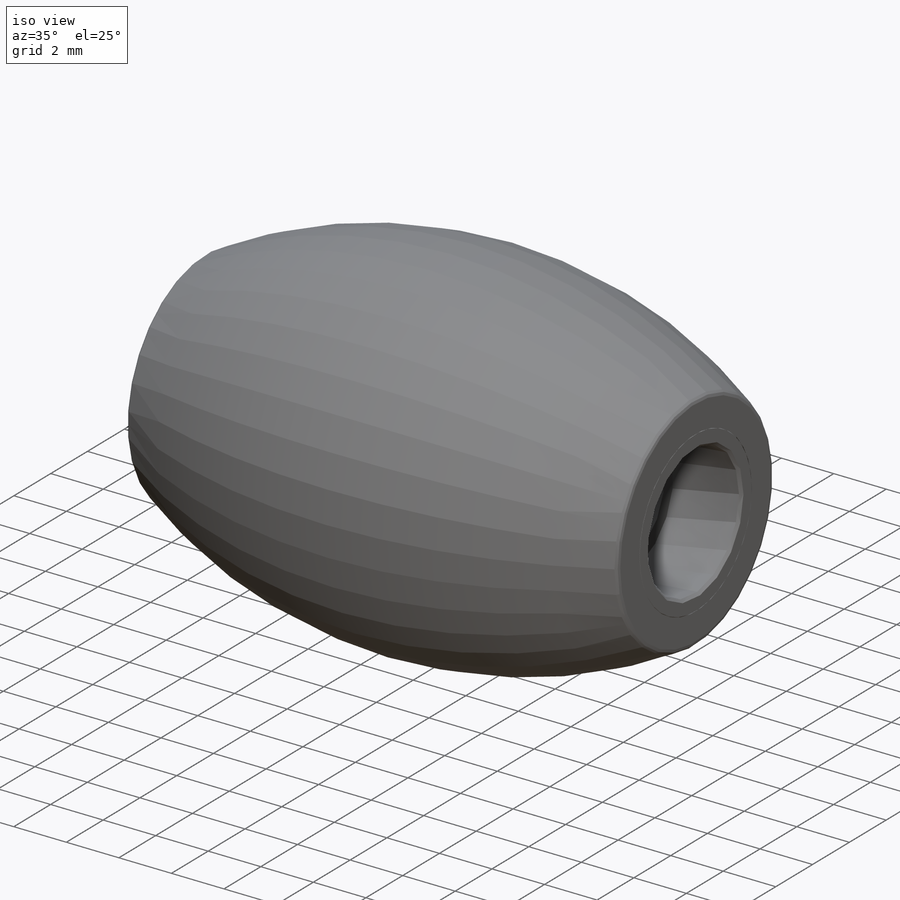
[diagram: iso view]
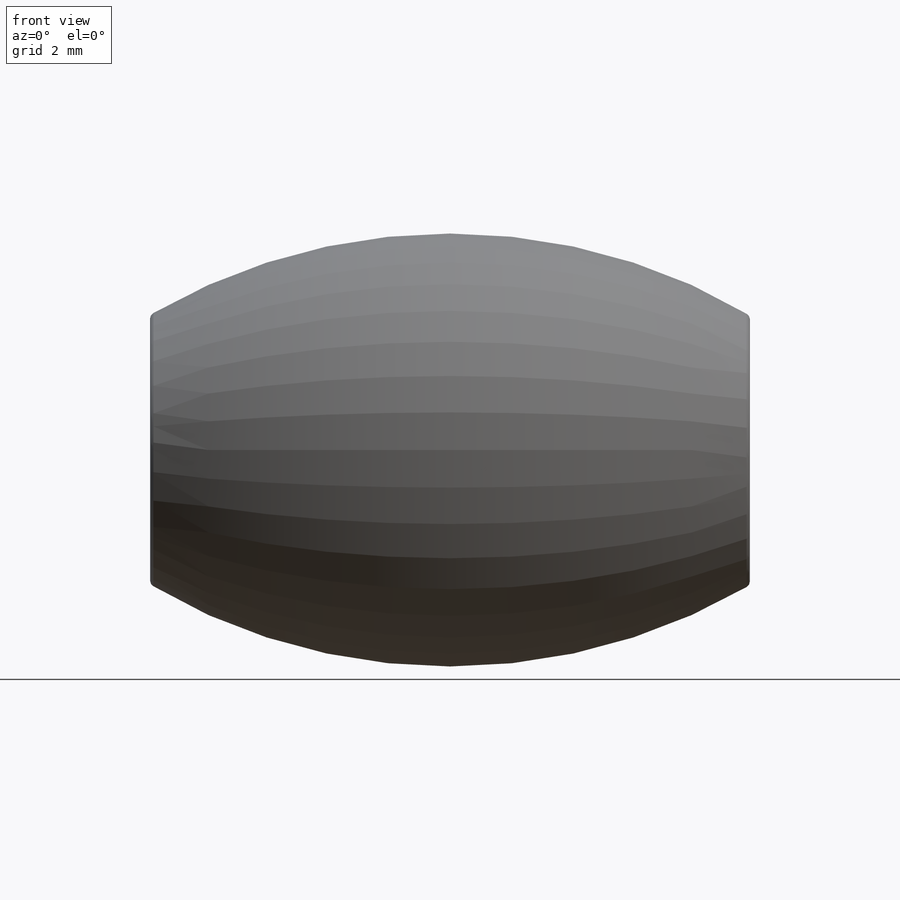
[diagram: front view]
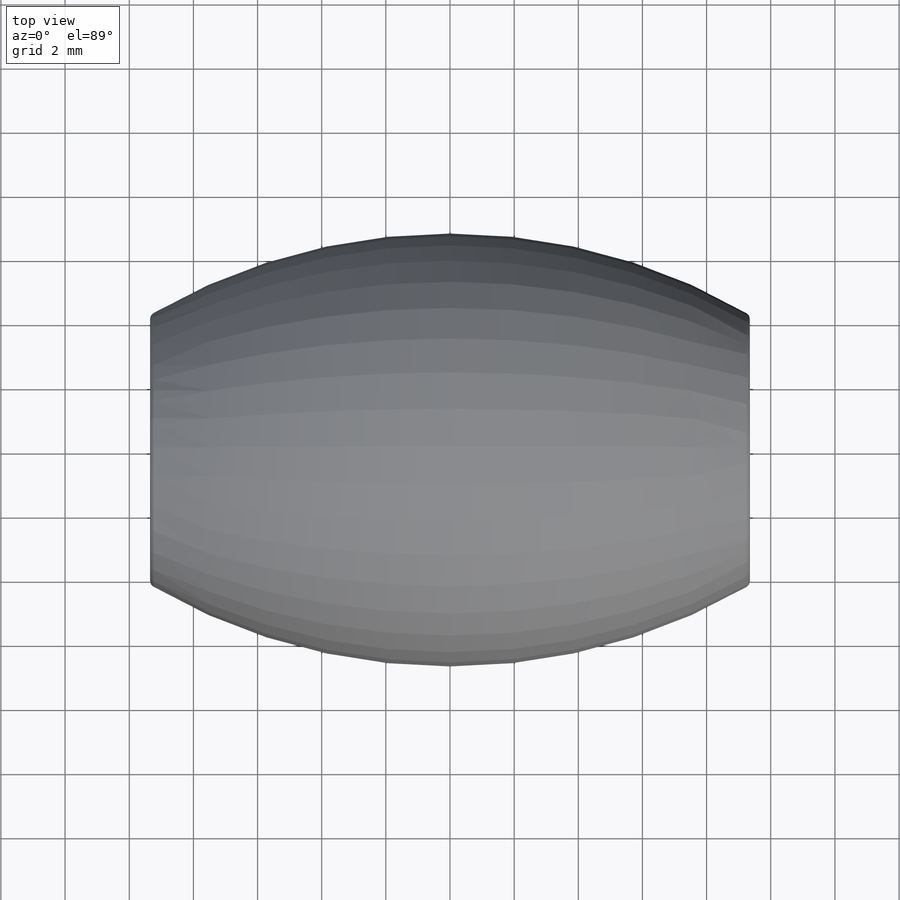
[diagram: top view]
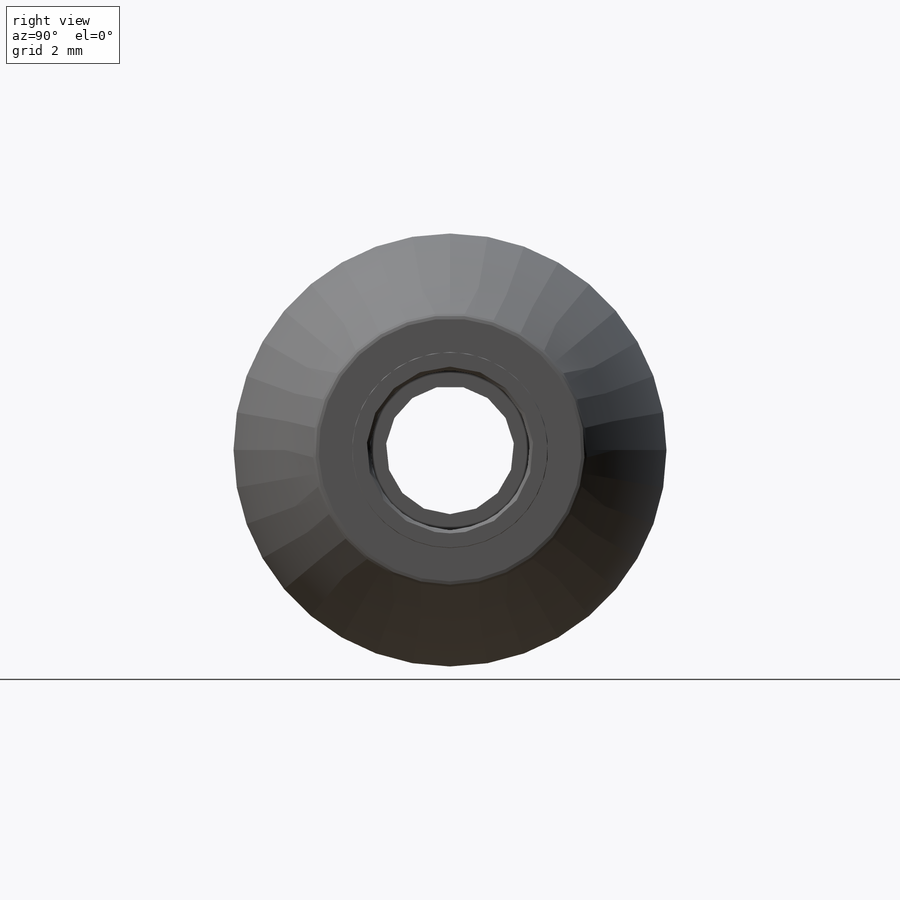
[diagram: right view]
SOLIDWORKS PART (.sldprt)
format: sldprt  version: not decoded by parser v0  size: 310,784 bytes
history: native  units: mm
features: plane x3, sketch x3, revolve x2, material x1, cut_revolve x1, chamfer x1, fillet x1 (+10 scaffold rows collapsed)
feature tree (22):
  scaffold x10  (default folders/planes/origin — collapsed)
  material  "Matériau <non spécifié>"
  plane  "Face"
  plane  "Dessus"
  plane  "Droite"
  sketch  "Esquisse1"  dims[c1.D1=~477.526942mm c1.D3=17.5mm c1.D2=18.7mm c2.D1=11.5mm]
  revolve  "Révolution1"  Angle=360deg
  sketch  "Esquisse2"  dims[D1=5.0mm D2=2.6mm D3=4.0mm]
  cut_revolve  "Enlèvement de matière-Révolution1"  Angle=360deg
  chamfer  "Chanfrein1"  Distance=0.1mm Angle=45deg
  sketch  "Esquisse4"  dims[D3=18.5mm D1=1.0mm D2=0.01mm]
  revolve  "Révolution2"  Angle=360deg
  fillet  "Congé1"  Radius=0.2mm
decode coverage: 8 of 8 modeling features carry decoded parameters
note: ~ marks probable driven/reference dimensions
note: suppression state not decoded; provenance and decode notes live in map.json
